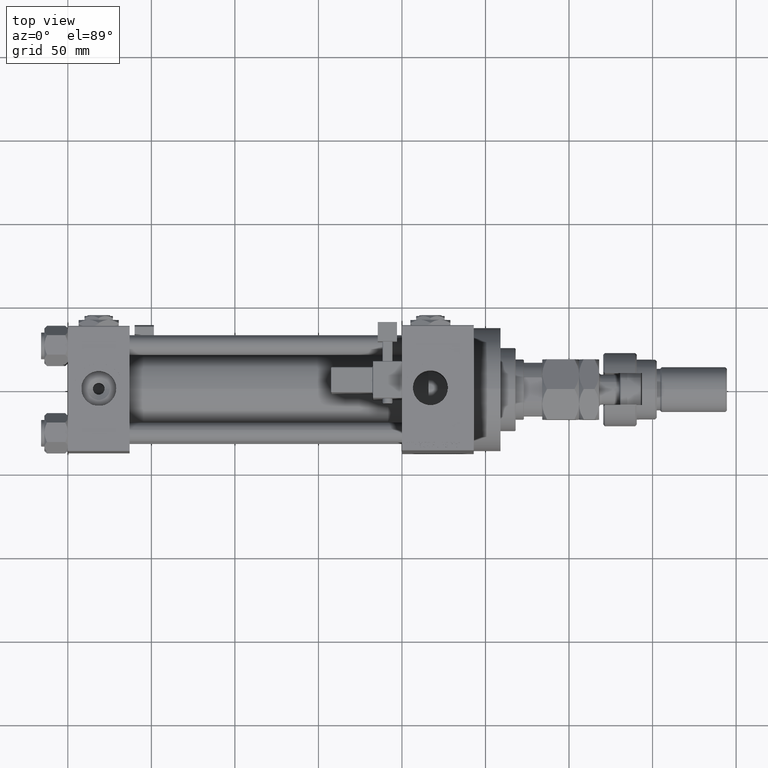
[diagram: clean part render]
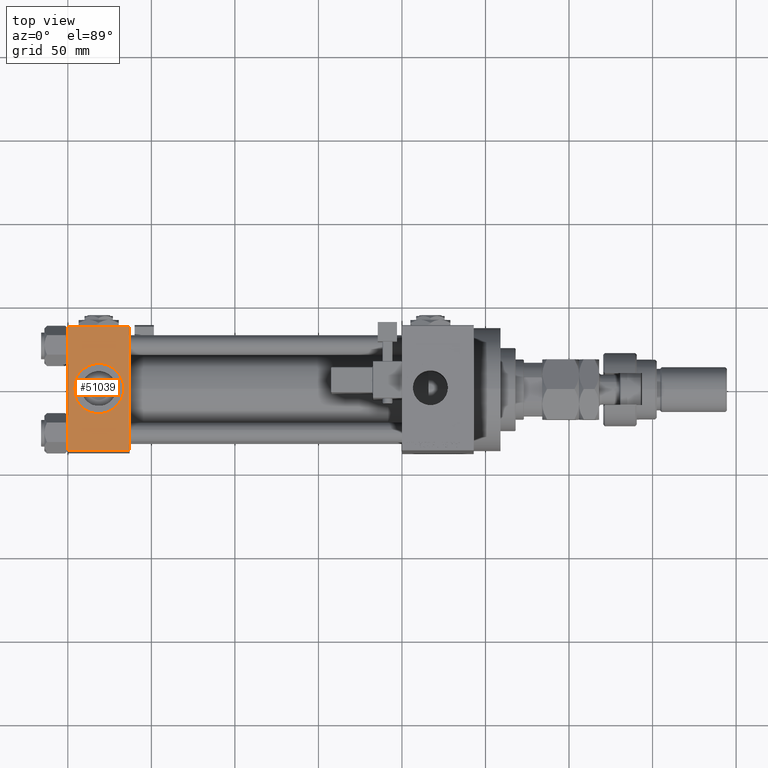
[diagram: same view with one face highlighted and labeled with its STEP entity id]
A machine part, top view. The second image highlights one B-rep face of the part: STEP entity #51039.
In plain terms, the highlighted planar face has unit normal (0, 0, -1).
Its self-contained STEP definition (entity closure, byte-faithful):
#789 = PLANE ( 'NONE',  #25056 ) ;
#1196 = CARTESIAN_POINT ( 'NONE',  ( 37.00000000000000000, 36.99999999999999289, 37.50000000000000000 ) ) ;
#1798 = DIRECTION ( 'NONE',  ( 1.000000000000000000, 0.000000000000000000, 0.000000000000000000 ) ) ;
#3394 = DIRECTION ( 'NONE',  ( 1.000000000000000000, 0.000000000000000000, 0.000000000000000000 ) ) ;
#3937 = DIRECTION ( 'NONE',  ( 0.000000000000000000, 0.000000000000000000, 1.000000000000000000 ) ) ;
#6031 = DIRECTION ( 'NONE',  ( 0.000000000000000000, -1.000000000000000000, -9.251858538542971581E-17 ) ) ;
#6123 = CARTESIAN_POINT ( 'NONE',  ( 37.00000000000000000, -37.00000000000000711, 37.49999999999999289 ) ) ;
#7961 = CARTESIAN_POINT ( 'NONE',  ( 0.000000000000000000, 36.99999999999999289, 37.50000000000000000 ) ) ;
#8615 = LINE ( 'NONE', #30325, #50914 ) ;
#8765 = FACE_BOUND ( 'NONE', #17743, .T. ) ;
#9191 = VERTEX_POINT ( 'NONE', #20459 ) ;
#12171 = CARTESIAN_POINT ( 'NONE',  ( 18.50000000000000000, -5.204170427930421283E-15, 37.50000000000000000 ) ) ;
#12607 = DIRECTION ( 'NONE',  ( 0.000000000000000000, 9.251858538542971581E-17, -1.000000000000000000 ) ) ;
#12873 = EDGE_LOOP ( 'NONE', ( #29355, #38965, #22358, #51960 ) ) ;
#12974 = VERTEX_POINT ( 'NONE', #1196 ) ;
#13213 = EDGE_CURVE ( 'NONE', #30376, #37473, #40364, .T. ) ;
#13250 = CARTESIAN_POINT ( 'NONE',  ( 0.000000000000000000, -37.00000000000000711, 37.49999999999999289 ) ) ;
#13600 = VECTOR ( 'NONE', #18629, 1000.000000000000000 ) ;
#14830 = VECTOR ( 'NONE', #6031, 1000.000000000000000 ) ;
#16738 = FACE_OUTER_BOUND ( 'NONE', #12873, .T. ) ;
#17129 = DIRECTION ( 'NONE',  ( -1.000000000000000000, 0.000000000000000000, 0.000000000000000000 ) ) ;
#17408 = VERTEX_POINT ( 'NONE', #39429 ) ;
#17743 = EDGE_LOOP ( 'NONE', ( #38277, #47127 ) ) ;
#17989 = DIRECTION ( 'NONE',  ( 0.000000000000000000, 0.000000000000000000, 1.000000000000000000 ) ) ;
#18629 = DIRECTION ( 'NONE',  ( 1.000000000000000000, 0.000000000000000000, 0.000000000000000000 ) ) ;
#19521 = AXIS2_PLACEMENT_3D ( 'NONE', #22129, #17989, #1798 ) ;
#20459 = CARTESIAN_POINT ( 'NONE',  ( 3.499999999999997780, -3.367200229209391300E-15, 37.50000000000000000 ) ) ;
#22129 = CARTESIAN_POINT ( 'NONE',  ( 18.50000000000000000, -5.204170427930421283E-15, 37.50000000000000000 ) ) ;
#22358 = ORIENTED_EDGE ( 'NONE', *, *, #35796, .F. ) ;
#24332 = LINE ( 'NONE', #24599, #40679 ) ;
#24599 = CARTESIAN_POINT ( 'NONE',  ( 0.000000000000000000, 36.99999999999999289, 37.50000000000000000 ) ) ;
#25056 = AXIS2_PLACEMENT_3D ( 'NONE', #33534, #12607, #51125 ) ;
#25398 = DIRECTION ( 'NONE',  ( 0.000000000000000000, -1.000000000000000000, -9.251858538542971581E-17 ) ) ;
#26724 = EDGE_CURVE ( 'NONE', #9191, #17408, #43080, .T. ) ;
#29355 = ORIENTED_EDGE ( 'NONE', *, *, #32283, .T. ) ;
#30325 = CARTESIAN_POINT ( 'NONE',  ( 0.000000000000000000, 37.49999999999999289, 37.50000000000000000 ) ) ;
#30376 = VERTEX_POINT ( 'NONE', #13250 ) ;
#32283 = EDGE_CURVE ( 'NONE', #36472, #30376, #8615, .T. ) ;
#33447 = AXIS2_PLACEMENT_3D ( 'NONE', #12171, #3937, #3394 ) ;
#33534 = CARTESIAN_POINT ( 'NONE',  ( 37.00000000000000000, 37.49999999999999289, 37.50000000000000000 ) ) ;
#35422 = CARTESIAN_POINT ( 'NONE',  ( 37.00000000000000000, -37.00000000000000711, 37.49999999999999289 ) ) ;
#35796 = EDGE_CURVE ( 'NONE', #12974, #37473, #51975, .T. ) ;
#36472 = VERTEX_POINT ( 'NONE', #7961 ) ;
#37473 = VERTEX_POINT ( 'NONE', #6123 ) ;
#38277 = ORIENTED_EDGE ( 'NONE', *, *, #42378, .F. ) ;
#38965 = ORIENTED_EDGE ( 'NONE', *, *, #13213, .T. ) ;
#39429 = CARTESIAN_POINT ( 'NONE',  ( 33.50000000000000000, -5.204170427930421283E-15, 37.50000000000000000 ) ) ;
#40364 = LINE ( 'NONE', #35422, #13600 ) ;
#40679 = VECTOR ( 'NONE', #17129, 1000.000000000000000 ) ;
#42378 = EDGE_CURVE ( 'NONE', #17408, #9191, #43214, .T. ) ;
#43080 = CIRCLE ( 'NONE', #33447, 15.00000000000000355 ) ;
#43214 = CIRCLE ( 'NONE', #19521, 15.00000000000000355 ) ;
#43716 = CARTESIAN_POINT ( 'NONE',  ( 37.00000000000000000, 37.49999999999999289, 37.50000000000000000 ) ) ;
#46557 = EDGE_CURVE ( 'NONE', #12974, #36472, #24332, .T. ) ;
#47127 = ORIENTED_EDGE ( 'NONE', *, *, #26724, .F. ) ;
#50914 = VECTOR ( 'NONE', #25398, 1000.000000000000000 ) ;
#51039 = ADVANCED_FACE ( 'NONE', ( #8765, #16738 ), #789, .F. ) ;
#51125 = DIRECTION ( 'NONE',  ( 0.000000000000000000, 1.000000000000000000, 9.251858538542971581E-17 ) ) ;
#51960 = ORIENTED_EDGE ( 'NONE', *, *, #46557, .T. ) ;
#51975 = LINE ( 'NONE', #43716, #14830 ) ;